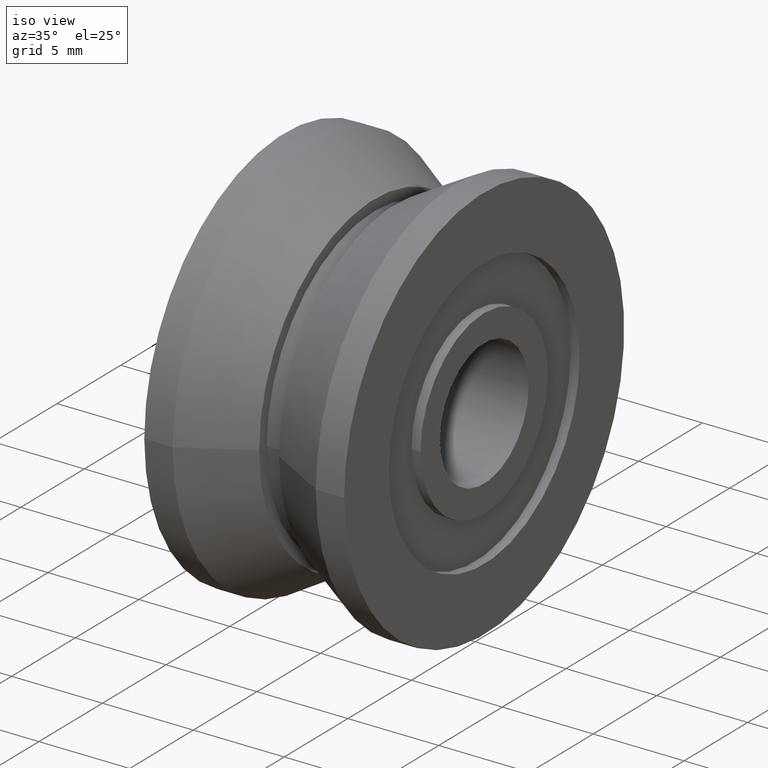
[diagram: clean part render]
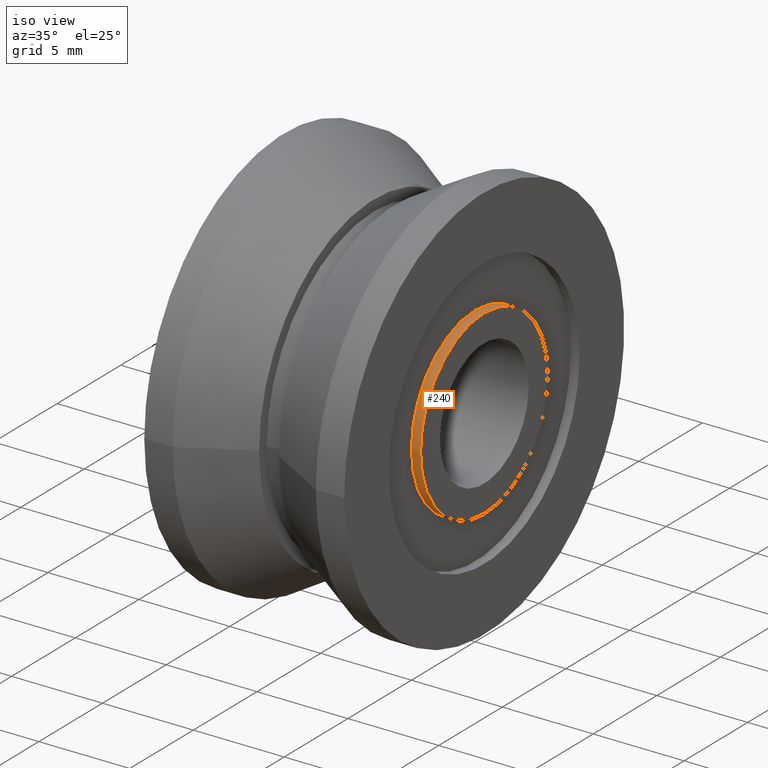
[diagram: same view with one face highlighted and labeled with its STEP entity id]
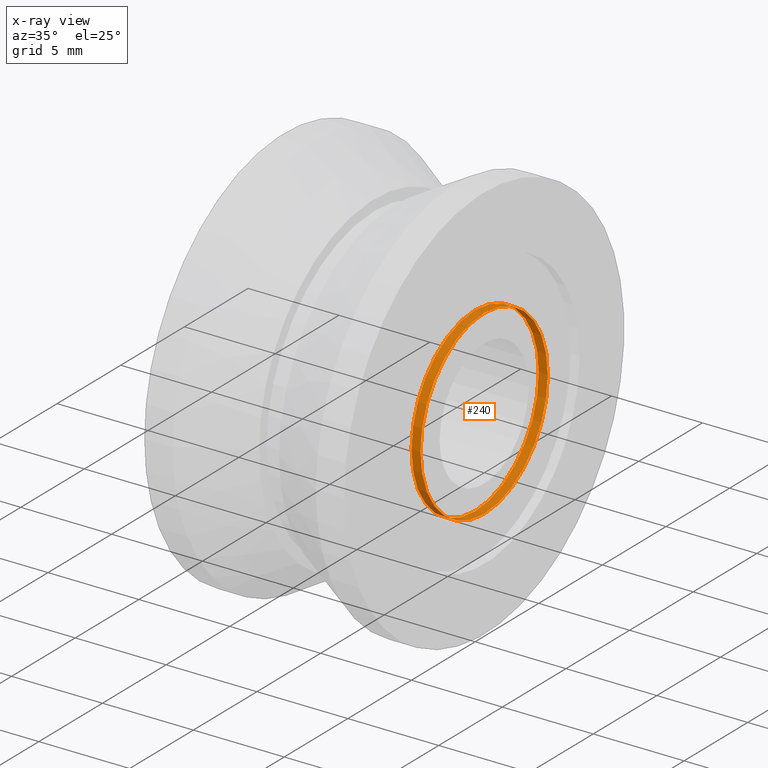
[diagram: x-ray of the same camera — body ghosted, the highlighted face saturated]
A machine part, iso view. The second image highlights one B-rep face of the part: STEP entity #240.
The next image is the same camera in x-ray: the body ghosted, the highlighted face saturated — about 0% of this face is hidden behind the body in this view.
In plain terms, the highlighted cylindrical surface (bore or boss wall) has radius 5 mm, axis along (1, 0, 0).
Its self-contained STEP definition (entity closure, byte-faithful):
#25=LINE('',#445,#35);
#35=VECTOR('',#378,5.);
#43=CYLINDRICAL_SURFACE('',#297,5.);
#68=FACE_OUTER_BOUND('',#93,.T.);
#93=EDGE_LOOP('',(#207,#208,#209,#210));
#112=CIRCLE('',#296,5.);
#113=CIRCLE('',#298,5.);
#130=VERTEX_POINT('',#440);
#131=VERTEX_POINT('',#443);
#156=EDGE_CURVE('',#130,#130,#112,.T.);
#157=EDGE_CURVE('',#131,#131,#113,.T.);
#158=EDGE_CURVE('',#131,#130,#25,.T.);
#207=ORIENTED_EDGE('',*,*,#157,.F.);
#208=ORIENTED_EDGE('',*,*,#158,.T.);
#209=ORIENTED_EDGE('',*,*,#156,.T.);
#210=ORIENTED_EDGE('',*,*,#158,.F.);
#240=ADVANCED_FACE('',(#68),#43,.T.);
#296=AXIS2_PLACEMENT_3D('',#441,#372,#373);
#297=AXIS2_PLACEMENT_3D('',#442,#374,#375);
#298=AXIS2_PLACEMENT_3D('',#444,#376,#377);
#372=DIRECTION('center_axis',(1.,0.,0.));
#373=DIRECTION('ref_axis',(0.,1.,0.));
#374=DIRECTION('center_axis',(1.,0.,0.));
#375=DIRECTION('ref_axis',(0.,1.,0.));
#376=DIRECTION('center_axis',(1.,0.,0.));
#377=DIRECTION('ref_axis',(0.,1.,0.));
#378=DIRECTION('',(-1.,0.,0.));
#440=CARTESIAN_POINT('',(5.,-5.,-6.12323399573677E-16));
#441=CARTESIAN_POINT('Origin',(5.,0.,0.));
#442=CARTESIAN_POINT('Origin',(5.25,0.,0.));
#443=CARTESIAN_POINT('',(5.5,-5.,-6.12323399573677E-16));
#444=CARTESIAN_POINT('Origin',(5.5,0.,0.));
#445=CARTESIAN_POINT('',(5.25,-5.,-6.12323399573677E-16));